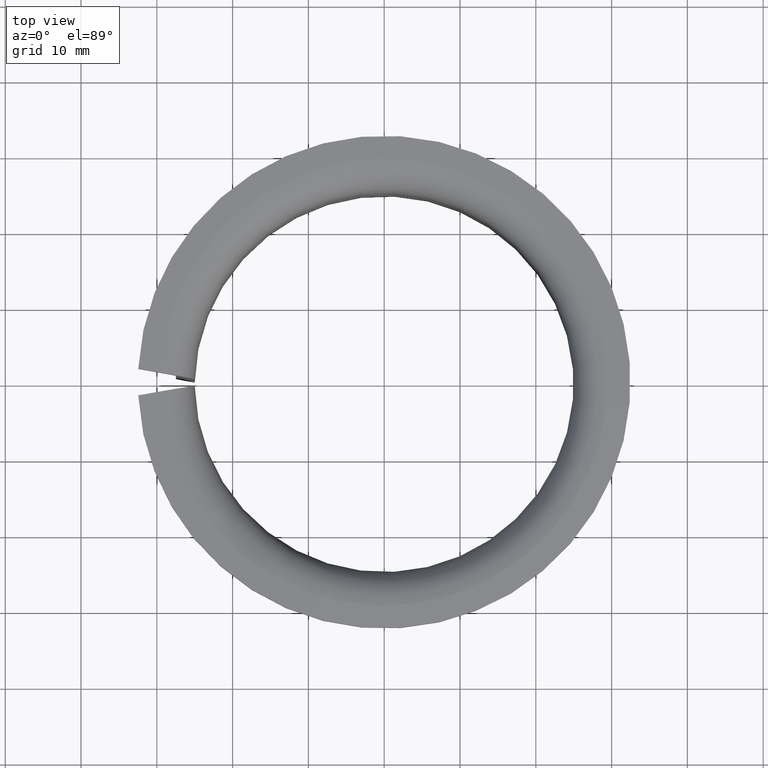
[diagram: clean part render]
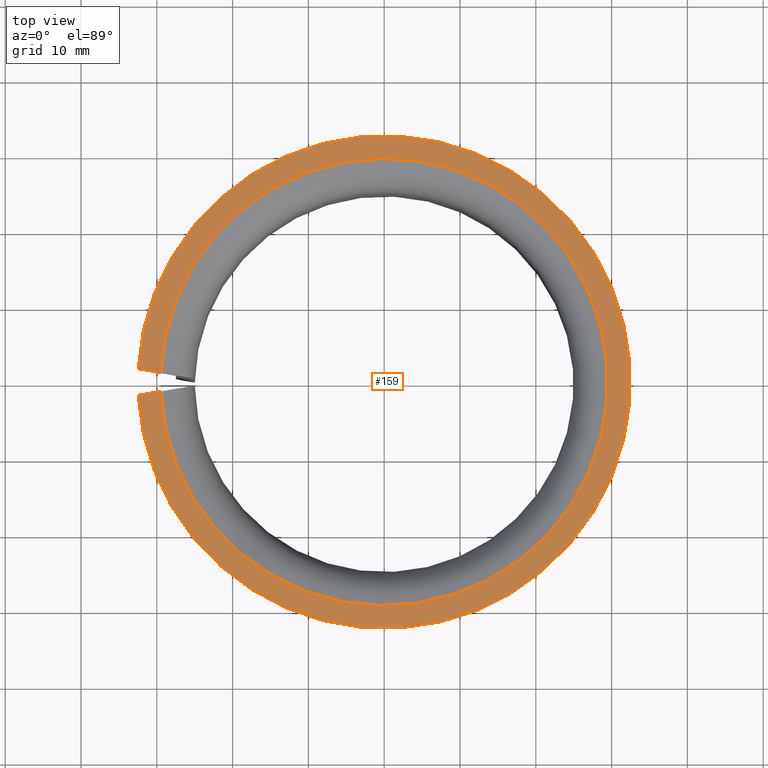
[diagram: same view with one face highlighted and labeled with its STEP entity id]
A machine part, top view. The second image highlights one B-rep face of the part: STEP entity #159.
In plain terms, the highlighted planar face has unit normal (0, -0, 1).
Its self-contained STEP definition (entity closure, byte-faithful):
#159=ADVANCED_FACE('',(#179),#180,.T.);
#179=FACE_OUTER_BOUND('',#204,.T.);
#180=PLANE('',#205);
#204=EDGE_LOOP('',(#264,#265,#266,#267));
#205=AXIS2_PLACEMENT_3D('',#268,#269,#270);
#264=ORIENTED_EDGE('',*,*,#327,.T.);
#265=ORIENTED_EDGE('',*,*,#335,.F.);
#266=ORIENTED_EDGE('',*,*,#333,.F.);
#267=ORIENTED_EDGE('',*,*,#313,.T.);
#268=CARTESIAN_POINT('',(0.0325,3.46944695195362E-018,0.03));
#269=DIRECTION('',(0.0,6.12323399573677E-017,1.0));
#270=DIRECTION('',(0.0,-1.0,6.12323399573677E-017));
#313=EDGE_CURVE('',#345,#343,#346,.T.);
#327=EDGE_CURVE('',#343,#369,#371,.T.);
#333=EDGE_CURVE('',#345,#380,#381,.T.);
#335=EDGE_CURVE('',#380,#369,#383,.T.);
#343=VERTEX_POINT('',#393);
#345=VERTEX_POINT('',#412);
#346=LINE('',#413,#414);
#369=VERTEX_POINT('',#464);
#371=CIRCLE('',#483,0.0295);
#380=VERTEX_POINT('',#506);
#381=CIRCLE('',#507,0.0325);
#383=LINE('',#510,#511);
#393=CARTESIAN_POINT('',(0.0294743561882176,-0.0012297671690538,0.03));
#412=CARTESIAN_POINT('',(0.0324525853097394,-0.00175490931790978,0.03));
#413=CARTESIAN_POINT('',(0.0372721162951831,-0.00260472266500395,0.03));
#414=VECTOR('',#526,1.0);
#464=CARTESIAN_POINT('',(0.0294743561882176,0.0012297671690538,0.03));
#483=AXIS2_PLACEMENT_3D('',#541,#542,#543);
#506=CARTESIAN_POINT('',(0.0324525853097394,0.00175490931790978,0.03));
#507=AXIS2_PLACEMENT_3D('',#554,#555,#556);
#510=CARTESIAN_POINT('',(0.0372721162951831,0.00260472266500396,0.03));
#511=VECTOR('',#558,1.0);
#526=DIRECTION('',(-0.984807753012208,0.173648177666931,0.0));
#541=CARTESIAN_POINT('',(0.0,3.46944695195362E-018,0.03));
#542=DIRECTION('',(0.0,-6.12323399573677E-017,-1.0));
#543=DIRECTION('',(0.0,1.0,-6.12323399573677E-017));
#554=CARTESIAN_POINT('',(0.0,3.46944695195362E-018,0.03));
#555=DIRECTION('',(0.0,-6.12323399573677E-017,-1.0));
#556=DIRECTION('',(0.0,1.0,-6.12323399573677E-017));
#558=DIRECTION('',(-0.984807753012208,-0.173648177666931,2.0942693688385E-017));